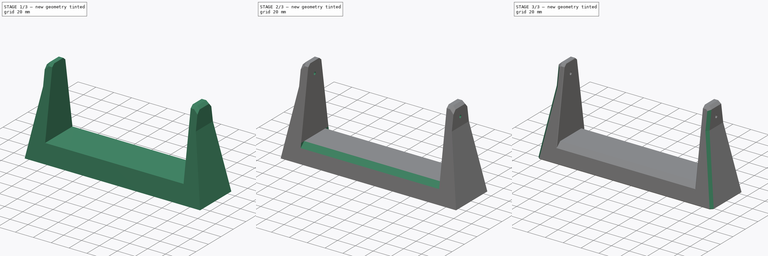
[diagram: build sequence overview — one tinted view per stage of 3, left to right]
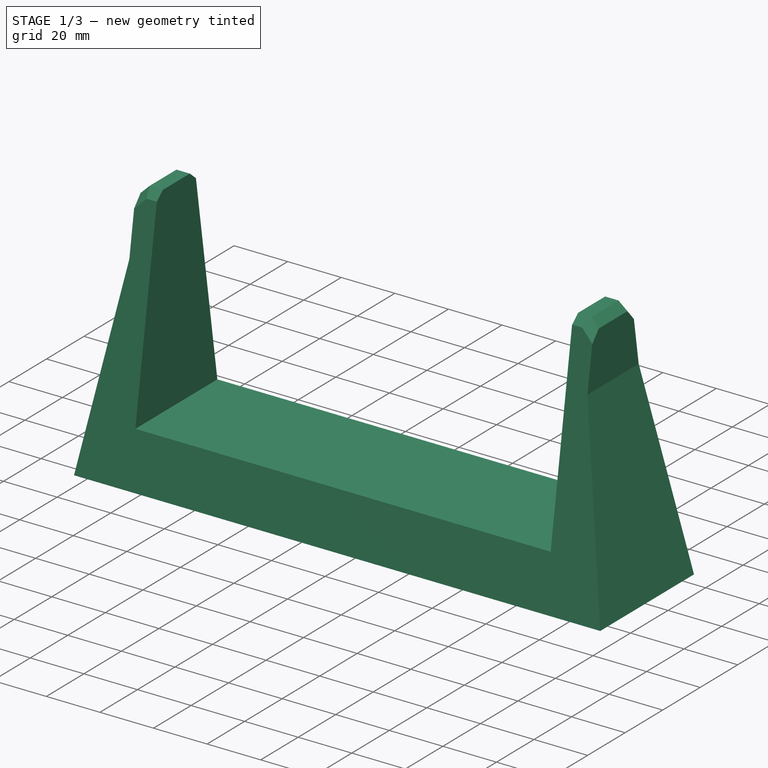
[diagram: stage 1 of 3 — iso view after this stage's code; geometry added in this stage tinted green]
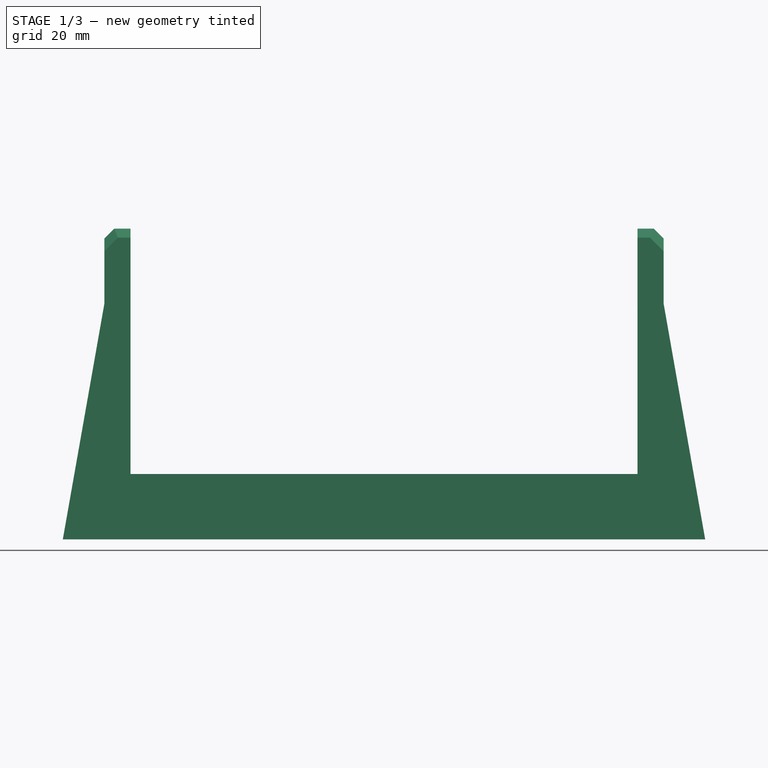
[diagram: stage 1 of 3 — front view after this stage's code; geometry added in this stage tinted green]
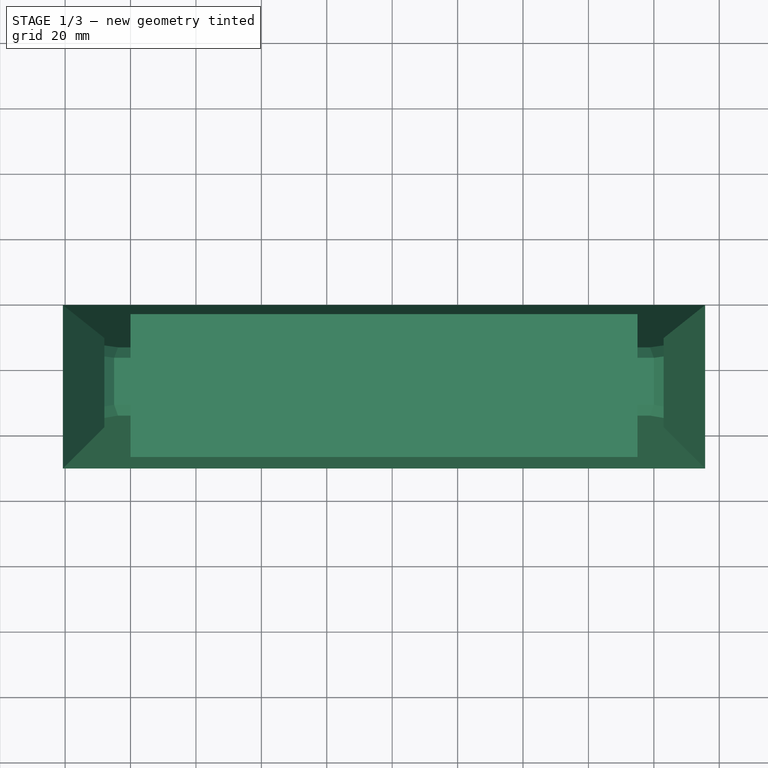
[diagram: stage 1 of 3 — top view after this stage's code; geometry added in this stage tinted green]
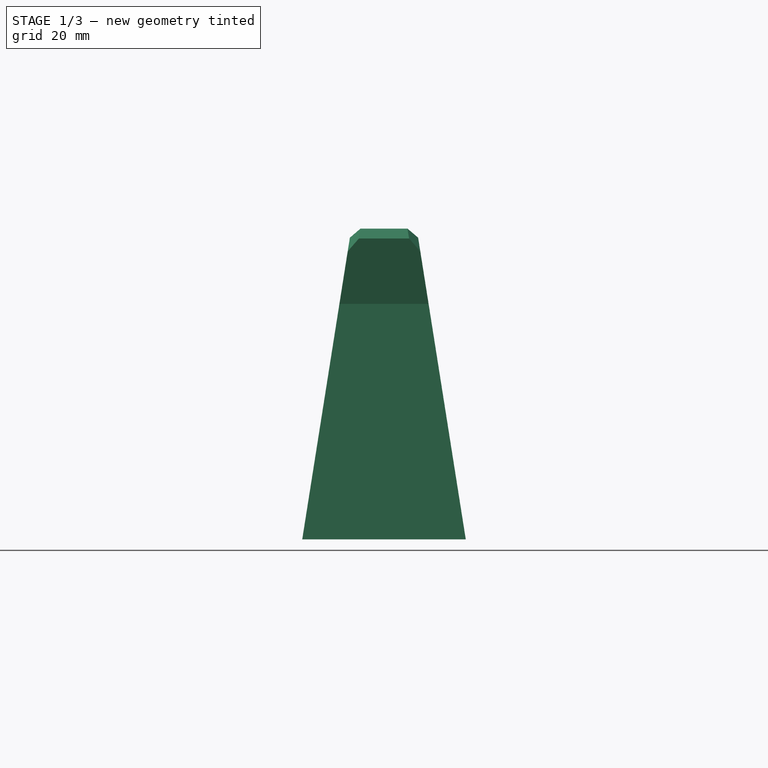
[diagram: stage 1 of 3 — right view after this stage's code; geometry added in this stage tinted green]
FCSTD DOCUMENT  (FreeCAD 0.19R24291 (Git))
Label: stand
License: All rights reserved
LicenseURL: http://en.wikipedia.org/wiki/All_rights_reserved
objects: Sketcher::SketchObject×4, PartDesign::Chamfer×4, PartDesign::Pocket×3, PartDesign::Pad×1, PartDesign::Body×1
note: 21 computed .brp shape members not serialized (recipe doc carries the construction recipe); baked Part::Feature solids carry a one-line shape summary decoded from their .brp

FEATURE [Sketcher::SketchObject] Sketch
  FullyConstrained = true
  MapMode = 5
  Placement = pos=(0,0,0) rot=(1,0,0;1.5708rad)
  Support = -> [XZ_Plane]
  sketch-geometry (12):
    g0: LineSegment StartX=0 StartY=0 StartZ=0 EndX=0 EndY=75 EndZ=0
    g1: LineSegment StartX=0 StartY=75 StartZ=0 EndX=-5 EndY=75 EndZ=0
    g2: LineSegment StartX=-5 StartY=75 StartZ=0 EndX=-8 EndY=72 EndZ=0
    g3: LineSegment StartX=-8 StartY=52 StartZ=0 EndX=-20.6955 EndY=-20 EndZ=0
    g4: LineSegment StartX=-20.6955 StartY=-20 StartZ=0 EndX=175.696 EndY=-20 EndZ=0
    g5: LineSegment StartX=175.696 StartY=-20 StartZ=0 EndX=163 EndY=52 EndZ=0
    g6: LineSegment StartX=163 StartY=72 StartZ=0 EndX=160 EndY=75 EndZ=0
    g7: LineSegment StartX=160 StartY=75 StartZ=0 EndX=155 EndY=75 EndZ=0
    g8: LineSegment StartX=155 StartY=75 StartZ=0 EndX=155 EndY=0 EndZ=0
    g9: LineSegment StartX=155 StartY=0 StartZ=0 EndX=0 EndY=0 EndZ=0
    g10: LineSegment StartX=-8 StartY=52 StartZ=0 EndX=-8 EndY=72 EndZ=0
    g11: LineSegment StartX=163 StartY=72 StartZ=0 EndX=163 EndY=52 EndZ=0
  constraints (35):
    c: Coincident(g-1,g0)
    c: PointOnObject(g0,g-2)
    c: Coincident(g0,g1)
    c: Coincident(g1,g2)
    c: Coincident(g3,g4)
    c: Horizontal(g4)
    c: Coincident(g4,g5)
    c: Coincident(g6,g7)
    c: Coincident(g7,g8)
    c: PointOnObject(g8,g-1)
    c: Vertical(g8)
    c: Coincident(g8,g9)
    c: Coincident(g9,g0)
    c: DistanceX(g9,g9) = 155
    c: DistanceY(g0,g0) = 75
    c: Horizontal(g1)
    c: Horizontal(g7)
    c: Angle(g2,g1) = 2.35619
    c: Angle(g4,g3) = 1.39626
    c: Angle(g5,g4) = 1.39626
    c: DistanceX(g1,g1) = 5
    c: DistanceX(g2,g1) = 3
    c: DistanceX(g7,g7) = 5
    c: DistanceX(g6,g5) = 3
    c: Angle(g7,g6) = 2.35619
    c: PointOnObject(g7,g1)
    c: DistanceY(g3,g0) = 20
    c: Coincident(g10,g3)
    c: Coincident(g10,g2)
    c: Vertical(g10)
    c: DistanceY(g10,g10) = 20
    c: Coincident(g11,g6)
    c: Coincident(g11,g5)
    c: Vertical(g11)
    c: DistanceY(g11,g11) = 20
FEATURE [PartDesign::Pad] Pad
  Direction = (1,1,1)
  Length = 50
  Length2 = 100
  Placement = pos=(0,0,0) rot=(1,0,0;1.5708rad)
  Profile = -> Sketch
  Type = 0
FEATURE [Sketcher::SketchObject] Sketch001
  ExternalGeometry = -> [Pad]
  FullyConstrained = true
  MapMode = 5
  Placement = pos=(0,0,0) rot=(0.57735,0.57735,0.57735;2.0944rad)
  Support = -> [YZ_Plane]
  sketch-geometry (6):
    g0: LineSegment StartX=-50 StartY=75 StartZ=0 EndX=-35 EndY=75 EndZ=0
    g1: LineSegment StartX=-35 StartY=75 StartZ=0 EndX=-50 EndY=-20 EndZ=0
    g2: LineSegment StartX=-50 StartY=-20 StartZ=0 EndX=-50 EndY=75 EndZ=0
    g3: LineSegment StartX=-15 StartY=75 StartZ=0 EndX=-3.38e-14 EndY=75 EndZ=0
    g4: LineSegment StartX=-3.38e-14 StartY=75 StartZ=0 EndX=3.9e-15 EndY=-20 EndZ=0
    g5: LineSegment StartX=3.9e-15 StartY=-20 StartZ=0 EndX=-15 EndY=75 EndZ=0
  constraints (14):
    c: Coincident(g-3,g0)
    c: Horizontal(g0)
    c: Coincident(g0,g1)
    c: Coincident(g1,g-4)
    c: Coincident(g1,g2)
    c: Coincident(g2,g0)
    c: PointOnObject(g3,g-3)
    c: Coincident(g3,g-3)
    c: Coincident(g3,g4)
    c: Coincident(g4,g-4)
    c: Coincident(g4,g5)
    c: Coincident(g5,g3)
    c: DistanceX(g0,g0) = 15
    c: DistanceX(g3,g3) = 15
FEATURE [PartDesign::Pocket] Pocket
  BaseFeature = -> Pad
  Length = 25
  Length2 = 180
  Placement = pos=(0,0,0) rot=(1,0,0;1.5708rad)
  Profile = -> Sketch001
  Type = 4
FEATURE [PartDesign::Chamfer] Chamfer
  Angle = 45
  Base = -> Pocket [Edge1,Edge7,Edge3,Edge17,Edge11,Edge12,Edge24,Edge23]
  BaseFeature = -> Pocket
  ChamferType = 0
  FlipDirection = false
  Placement = pos=(0,0,0) rot=(1,0,0;1.5708rad)
  Size = 2.8
  Size2 = 1
  SupportTransform = false
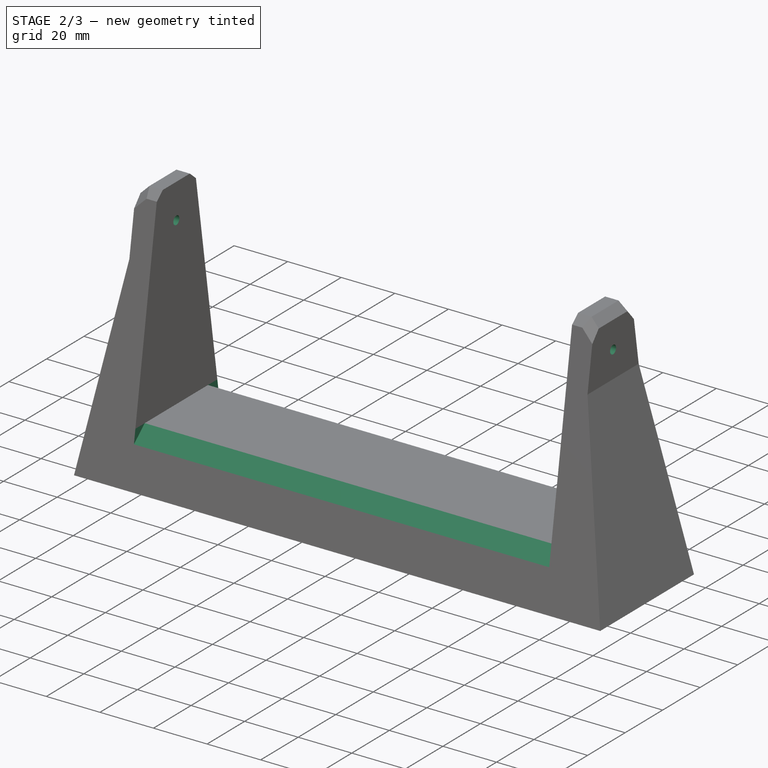
[diagram: stage 2 of 3 — iso view after this stage's code; geometry added in this stage tinted green]
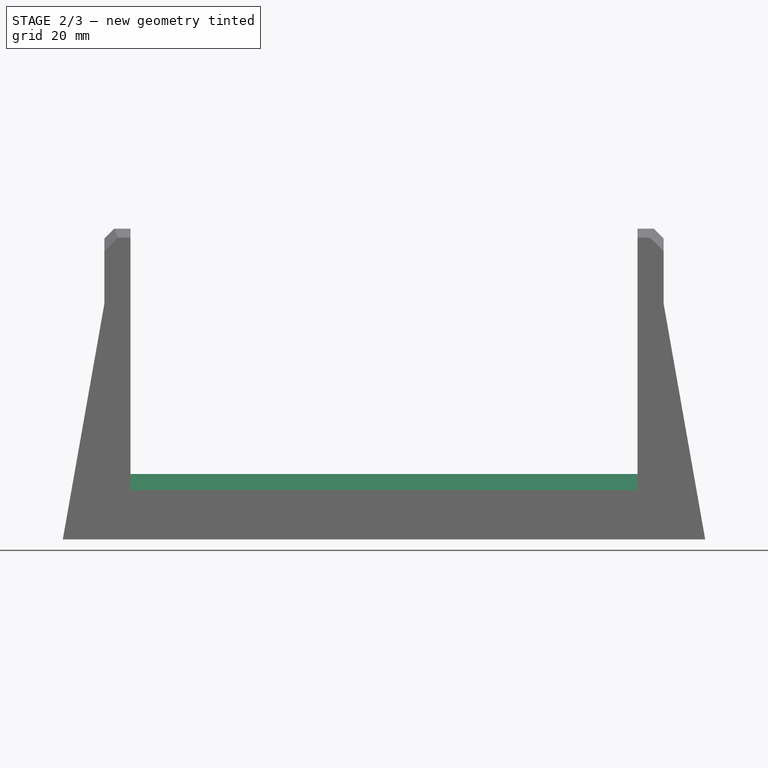
[diagram: stage 2 of 3 — front view after this stage's code; geometry added in this stage tinted green]
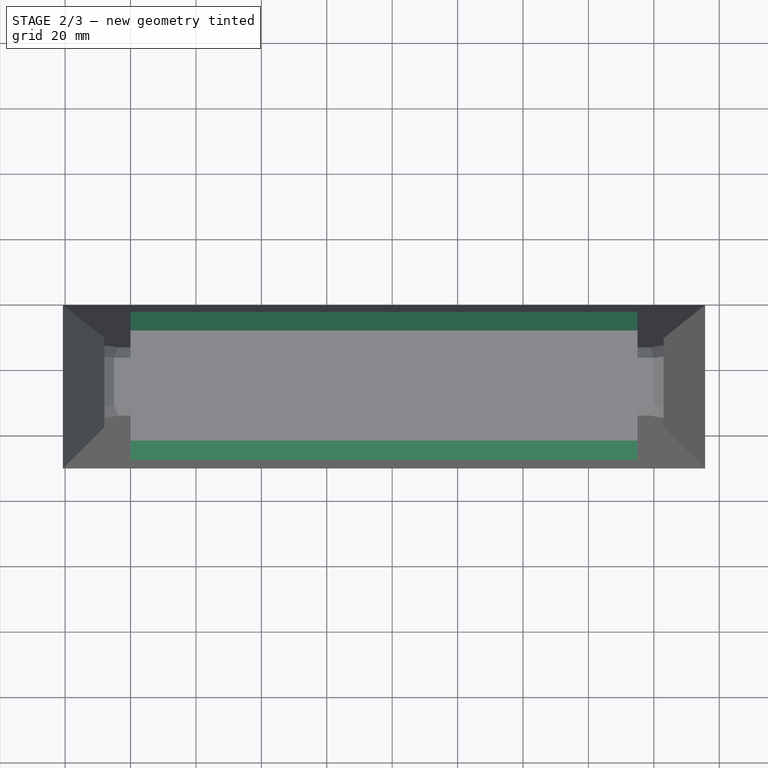
[diagram: stage 2 of 3 — top view after this stage's code; geometry added in this stage tinted green]
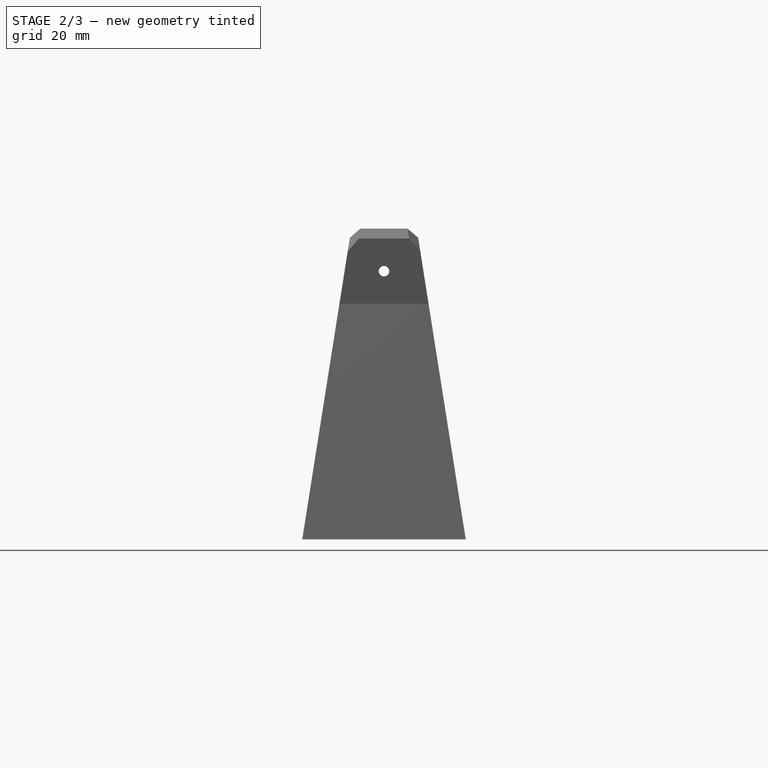
[diagram: stage 2 of 3 — right view after this stage's code; geometry added in this stage tinted green]
FEATURE [PartDesign::Chamfer] Chamfer001
  Angle = 45
  Base = -> Chamfer [Edge37,Edge29]
  BaseFeature = -> Chamfer
  ChamferType = 0
  FlipDirection = false
  Placement = pos=(0,0,0) rot=(1,0,0;1.5708rad)
  Size = 5
  Size2 = 1
  SupportTransform = false
FEATURE [Sketcher::SketchObject] Sketch002
  FullyConstrained = true
  MapMode = 5
  Placement = pos=(0,0,0) rot=(0.57735,0.57735,0.57735;2.0944rad)
  Support = -> [YZ_Plane]
  sketch-geometry (2):
    g0: Circle CenterX=-25 CenterY=62 CenterZ=0 NormalX=0 NormalY=0 NormalZ=1 AngleXU=0 Radius=1.6
    g1: LineSegment StartX=-25 StartY=62 StartZ=0 EndX=-25 EndY=0 EndZ=0
  constraints (6):
    c: Diameter(g0) = 3.2
    c: Coincident(g1,g0)
    c: PointOnObject(g1,g-1)
    c: Vertical(g1)
    c: DistanceY(g1,g1) = 62
    c: DistanceX(g0,g-1) = 25
FEATURE [PartDesign::Pocket] Pocket001
  BaseFeature = -> Chamfer001
  Length = 13
  Length2 = 200
  Placement = pos=(0,0,0) rot=(1,0,0;1.5708rad)
  Profile = -> Sketch002
  Type = 4
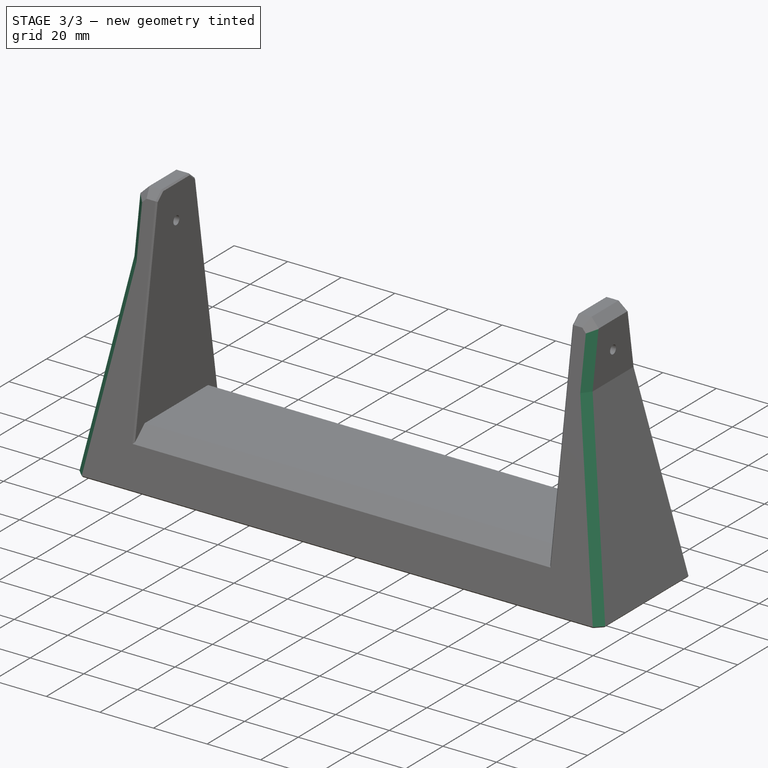
[diagram: stage 3 of 3 — iso view after this stage's code; geometry added in this stage tinted green]
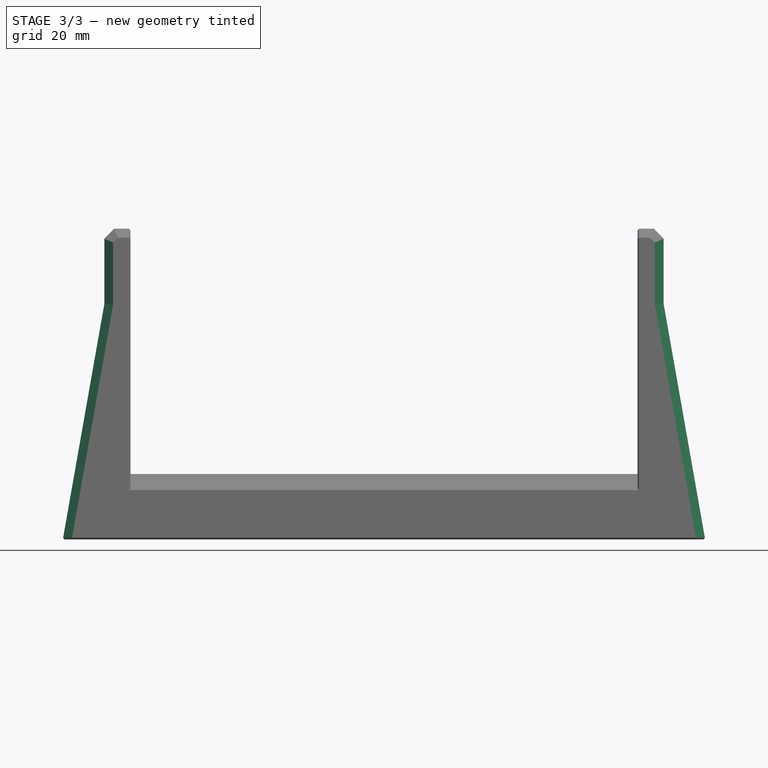
[diagram: stage 3 of 3 — front view after this stage's code; geometry added in this stage tinted green]
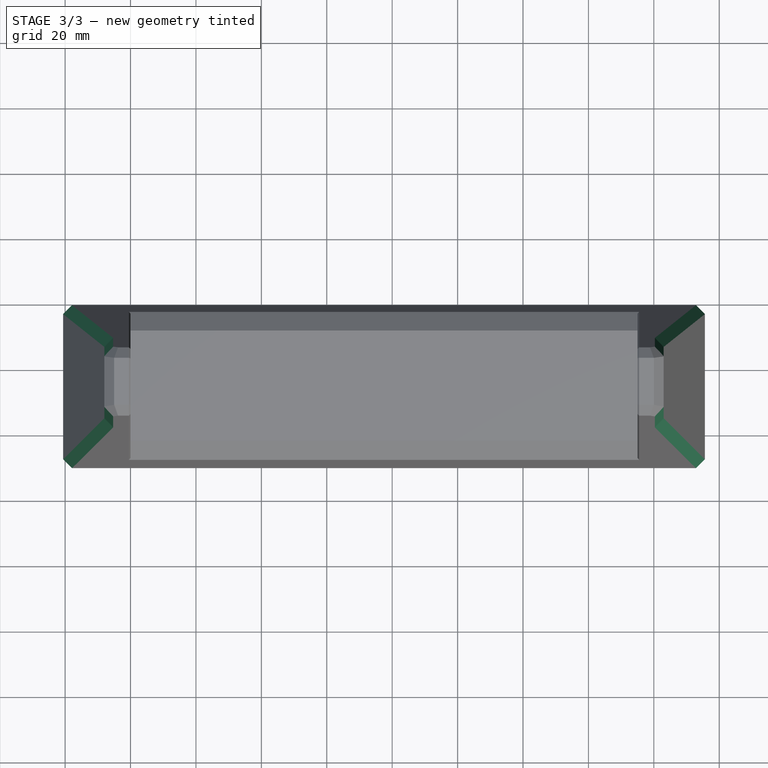
[diagram: stage 3 of 3 — top view after this stage's code; geometry added in this stage tinted green]
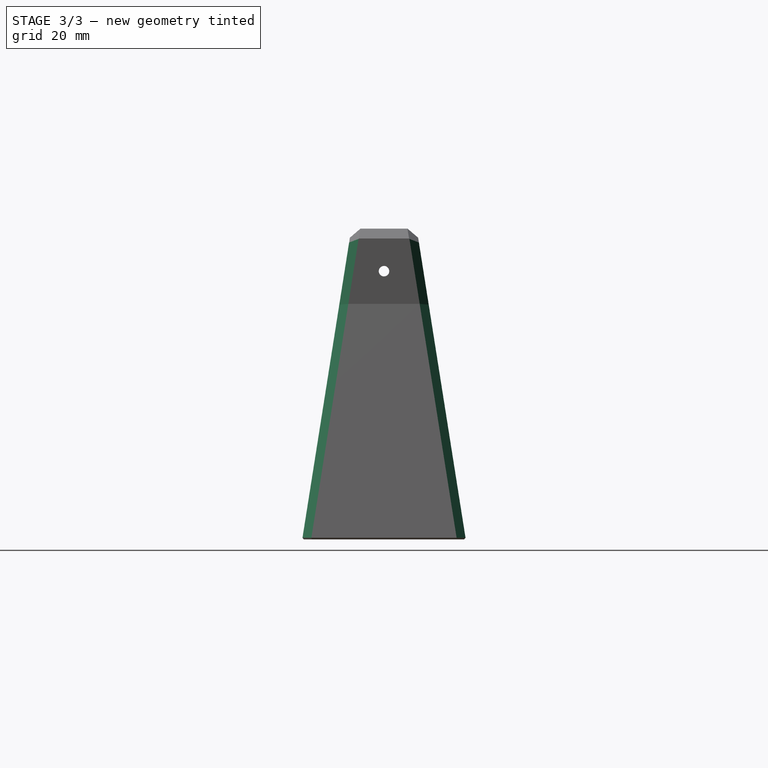
[diagram: stage 3 of 3 — right view after this stage's code; geometry added in this stage tinted green]
FEATURE [PartDesign::Chamfer] Chamfer002
  Angle = 45
  Base = -> Pocket001 [Edge34,Edge36,Edge28,Edge29,Edge39,Edge40,Edge23,Edge25]
  BaseFeature = -> Pocket001
  ChamferType = 0
  FlipDirection = false
  Placement = pos=(0,0,0) rot=(1,0,0;1.5708rad)
  Size = 2.69
  Size2 = 1
  SupportTransform = false
FEATURE [Sketcher::SketchObject] Sketch003
  FullyConstrained = true
  MapMode = 5
  Placement = pos=(0,4.4e-15,-20) rot=(1,0,0;3.14159rad)
  Support = -> [Chamfer002]
  sketch-geometry (4):
    g0: LineSegment StartX=2.5 StartY=40 StartZ=0 EndX=152.5 EndY=40 EndZ=0
    g1: LineSegment StartX=152.5 StartY=40 StartZ=0 EndX=152.5 EndY=10 EndZ=0
    g2: LineSegment StartX=152.5 StartY=10 StartZ=0 EndX=2.5 EndY=10 EndZ=0
    g3: LineSegment StartX=2.5 StartY=10 StartZ=0 EndX=2.5 EndY=40 EndZ=0
  constraints (12):
    c: Coincident(g0,g1)
    c: Coincident(g1,g2)
    c: Coincident(g2,g3)
    c: Coincident(g3,g0)
    c: Horizontal(g0)
    c: Horizontal(g2)
    c: Vertical(g1)
    c: Vertical(g3)
    c: DistanceX(g0,g0) = 150
    c: DistanceX(g-1,g2) = 2.5
    c: DistanceY(g3,g3) = 30
    c: DistanceY(g-1,g2) = 10
FEATURE [PartDesign::Pocket] Pocket002
  BaseFeature = -> Chamfer002
  Length = 10
  Length2 = 100
  Placement = pos=(0,0,0) rot=(1,0,0;1.5708rad)
  Profile = -> Sketch003
  Type = 0
FEATURE [PartDesign::Chamfer] Chamfer003
  Angle = 45
  Base = -> Pocket002 [Edge30,Edge31,Edge32,Edge22,Edge5,Edge13,Edge56,Edge54,Edge55,Edge53,Face7]
  BaseFeature = -> Pocket002
  ChamferType = 0
  FlipDirection = false
  Placement = pos=(0,0,0) rot=(1,0,0;1.5708rad)
  Size = 0.5
  Size2 = 1
  SupportTransform = false
FEATURE [PartDesign::Body] Body
  Group = -> [Sketch,Pad,Sketch001,Pocket,Chamfer,Chamfer001,Sketch002,Pocket001,Chamfer002,Sketch003,Pocket002,Chamfer003]
  Origin = -> Origin
  Tip = -> Chamfer003
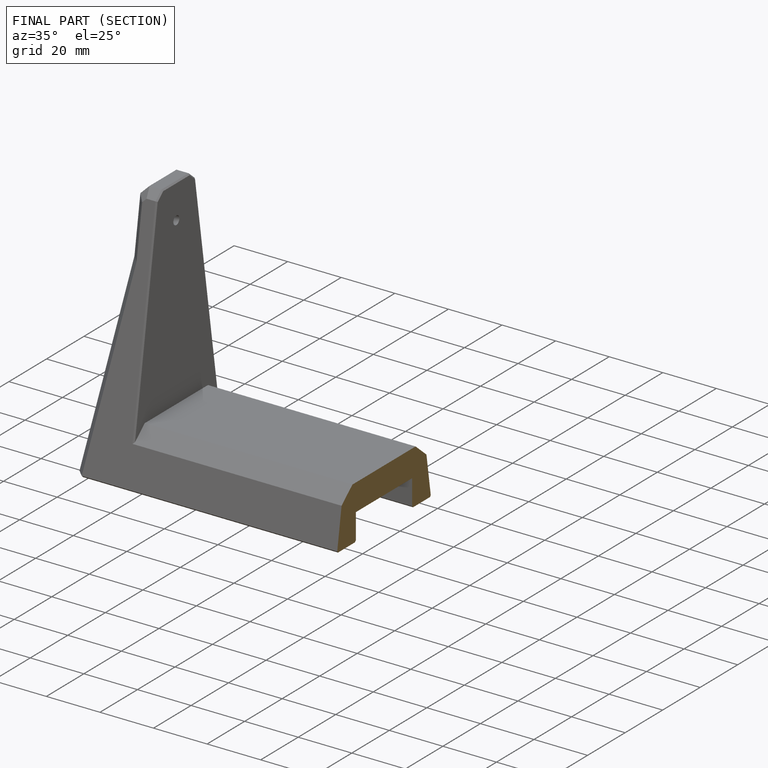
[diagram: finished part — half-section view (interior)]
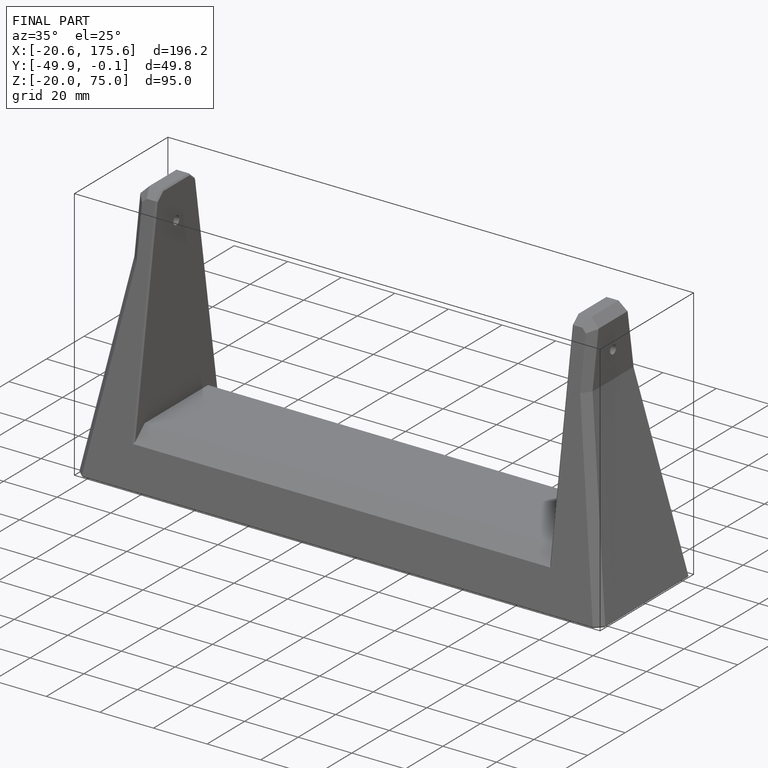
[diagram: finished part — iso view with bounding-box wireframe]
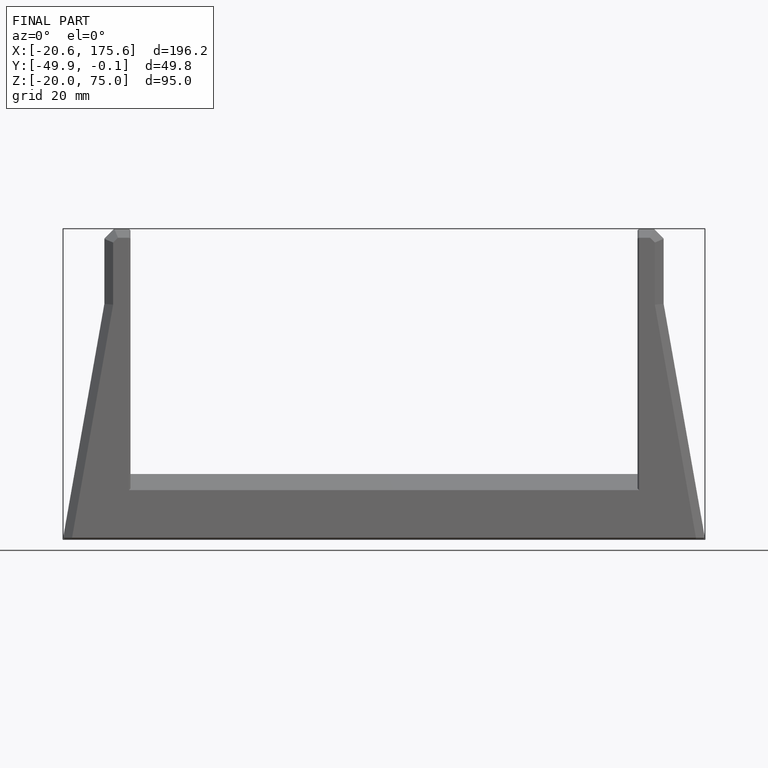
[diagram: finished part — front view with bounding-box wireframe]
